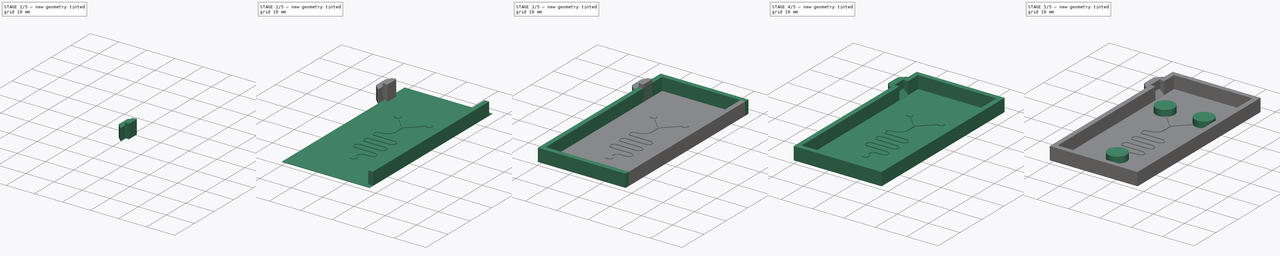
[diagram: build sequence overview — one tinted view per stage of 5, left to right]
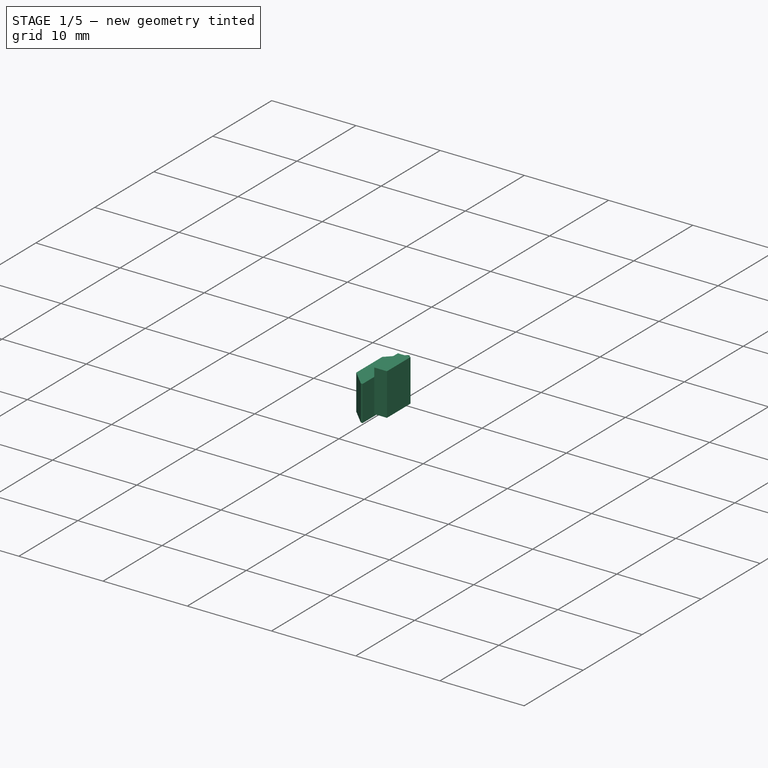
[diagram: stage 1 of 5 — iso view after this stage's code; geometry added in this stage tinted green]
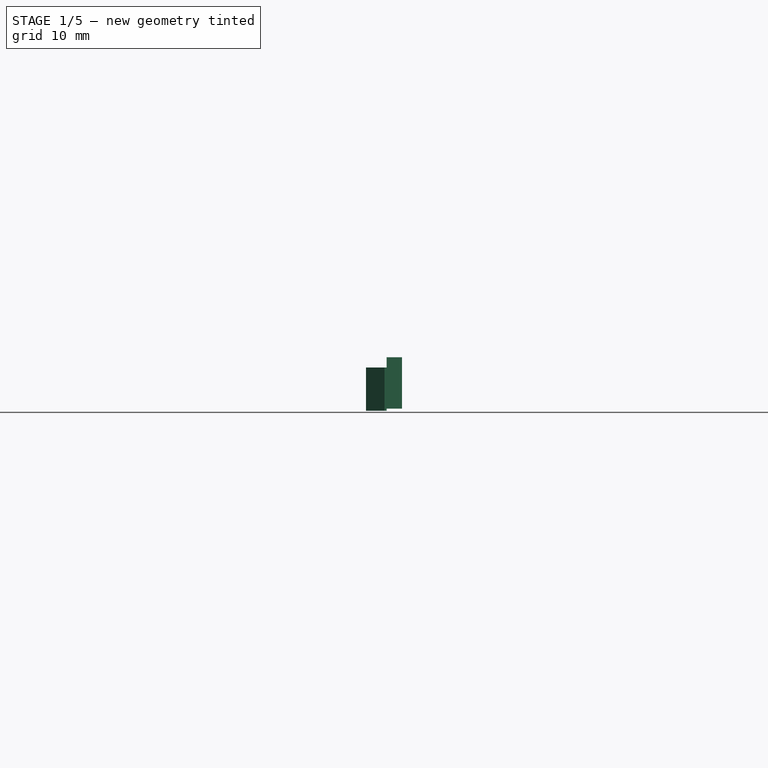
[diagram: stage 1 of 5 — front view after this stage's code; geometry added in this stage tinted green]
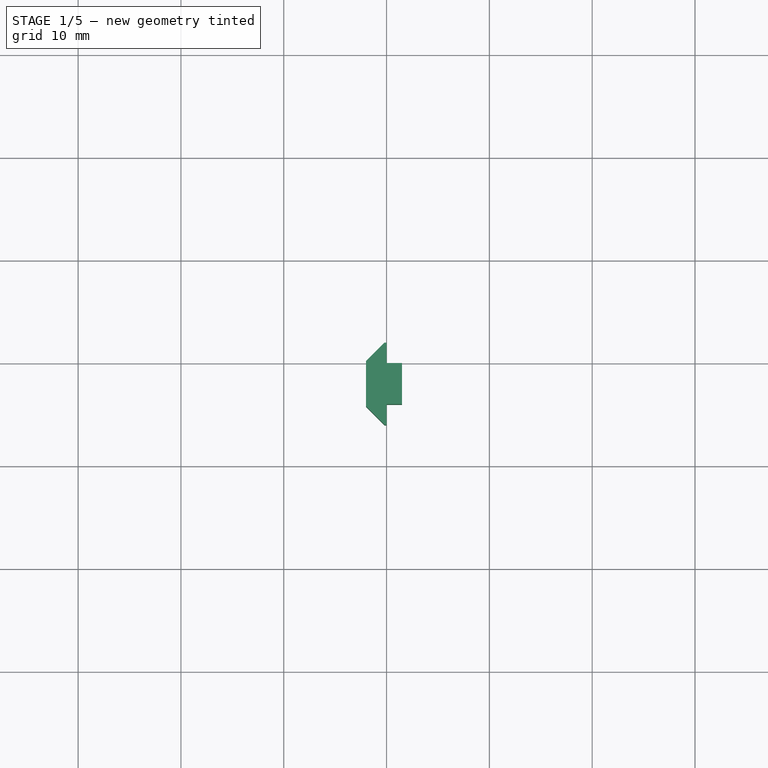
[diagram: stage 1 of 5 — top view after this stage's code; geometry added in this stage tinted green]
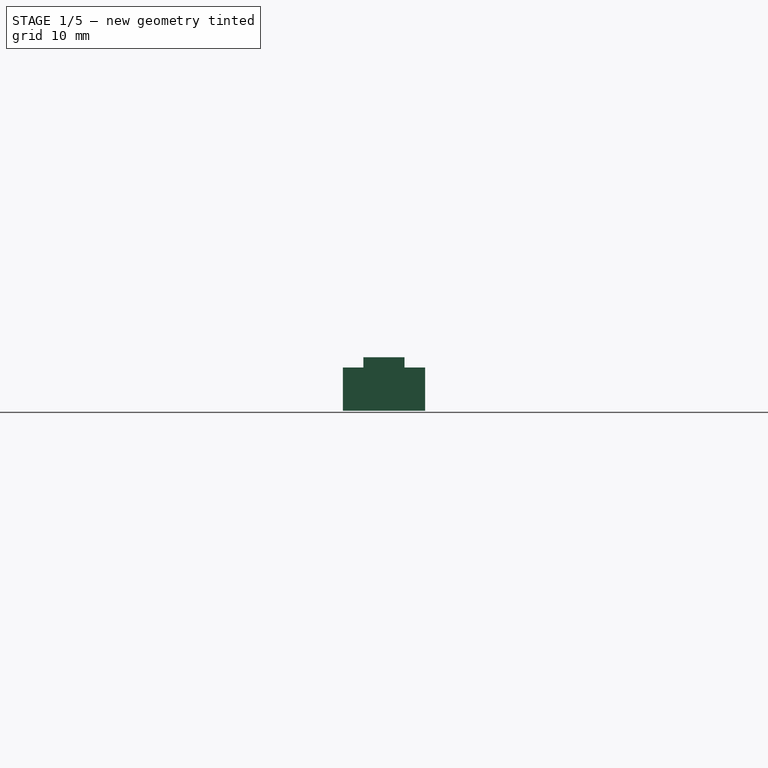
[diagram: stage 1 of 5 — right view after this stage's code; geometry added in this stage tinted green]
FCSTD DOCUMENT  (FreeCAD 0.16R6706 (Git))
Label: MG_17_004_partB_Microfluidic-Part_v1
License: All rights reserved
LicenseURL: http://en.wikipedia.org/wiki/All_rights_reserved
objects: Sketcher::SketchObject×6, PartDesign::Pad×6, Part::MultiFuse×5, Part::Box×3, Part::Chamfer×2, Part::Cut×1
note: 29 computed .brp shape members not serialized (recipe doc carries the construction recipe); baked Part::Feature solids carry a one-line shape summary decoded from their .brp

FEATURE [Part::Box] Box001  label="Cube001"
  Height = 5
  Length = 1.5
  Placement = pos=(0,46,0.2) rot=(0,0,1;0rad)
  Width = 4
FEATURE [Part::Box] Box002  label="Cube002"
  Height = 4.2
  Length = 2
  Placement = pos=(-2,44,0) rot=(0,0,1;0rad)
  Width = 8
FEATURE [Part::Chamfer] Chamfer001
  Base = -> Box002
  Edges = 2 edges r=1.8: [Edge1,Edge3]
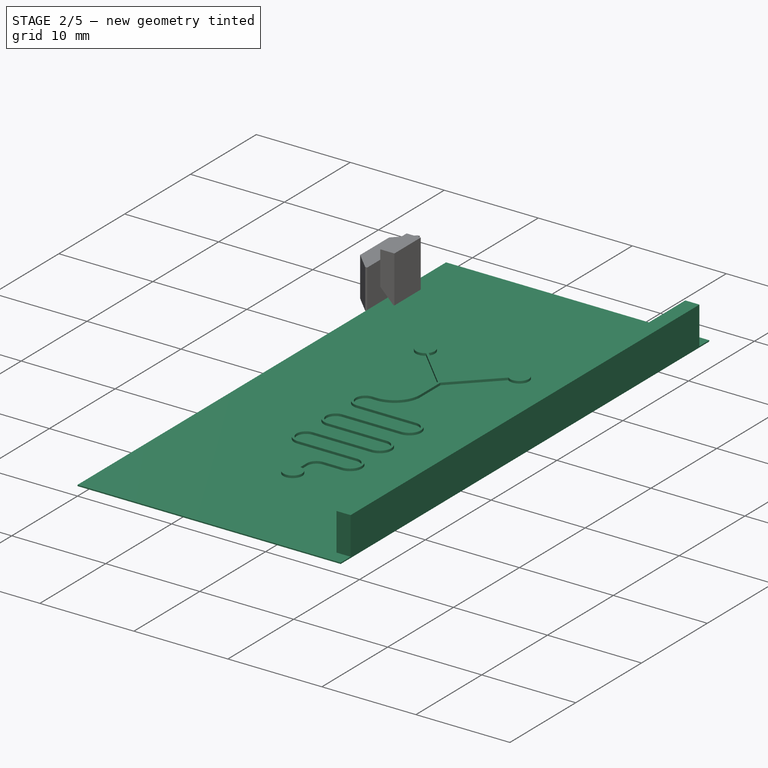
[diagram: stage 2 of 5 — iso view after this stage's code; geometry added in this stage tinted green]
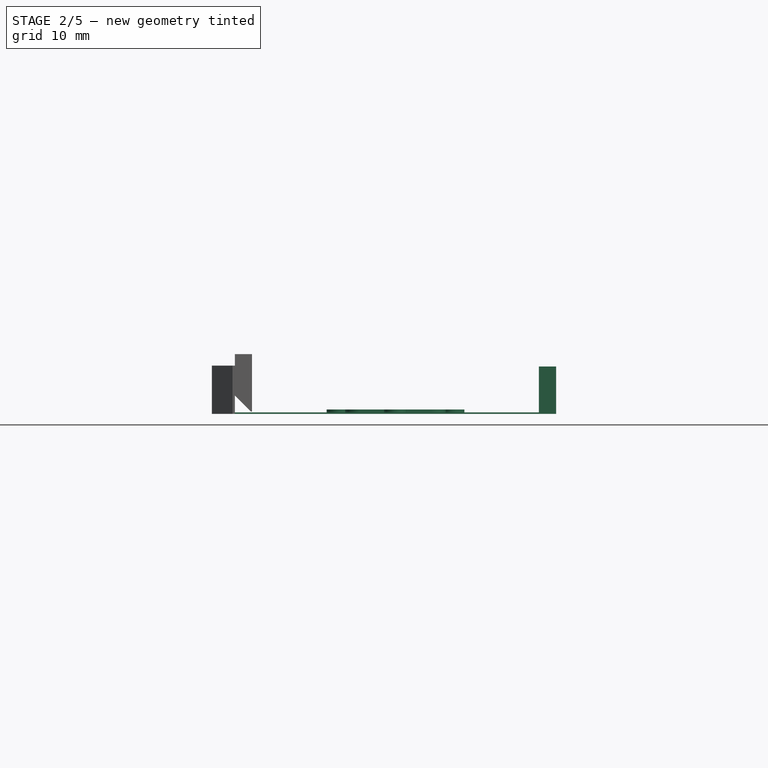
[diagram: stage 2 of 5 — front view after this stage's code; geometry added in this stage tinted green]
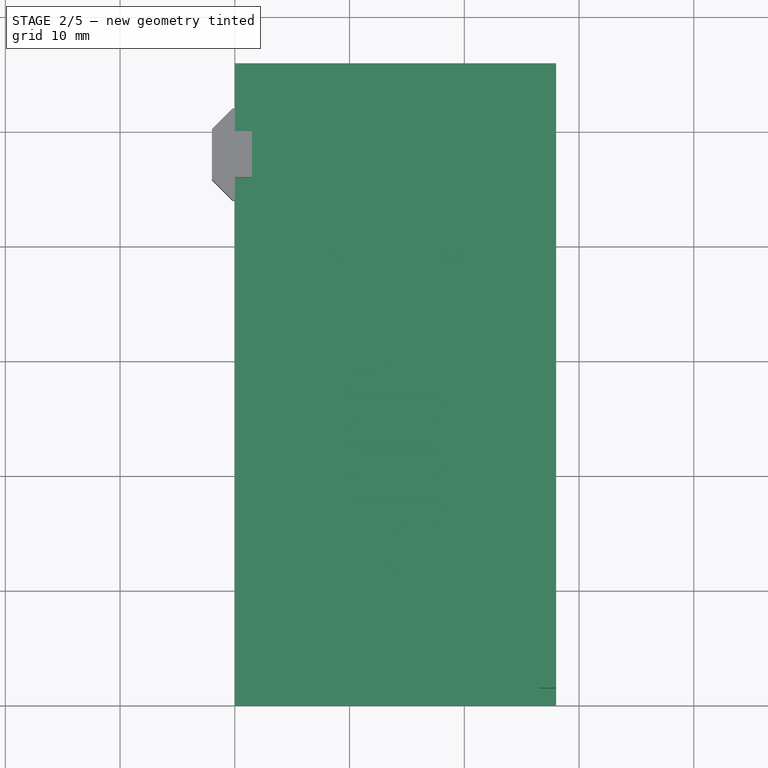
[diagram: stage 2 of 5 — top view after this stage's code; geometry added in this stage tinted green]
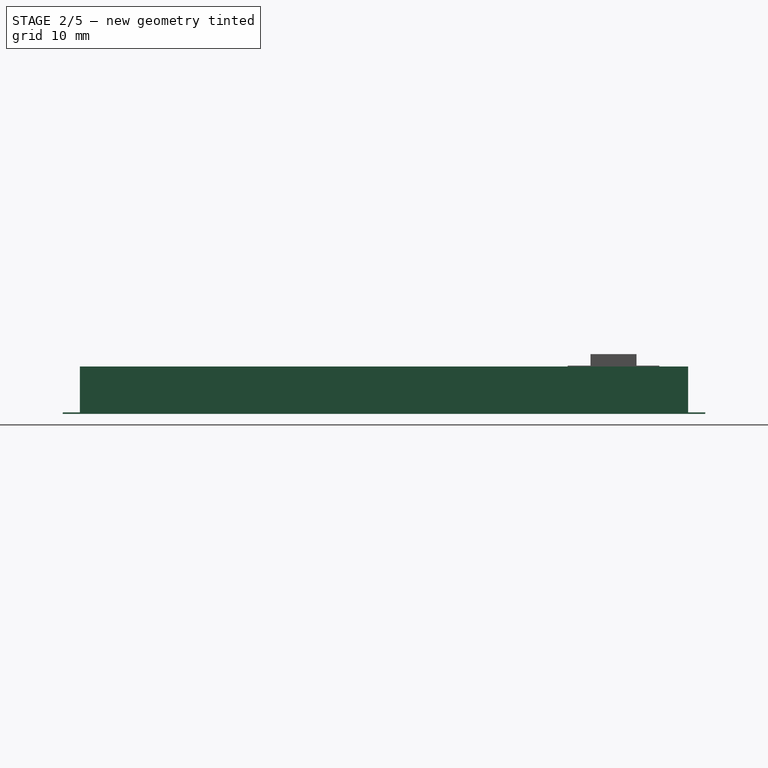
[diagram: stage 2 of 5 — right view after this stage's code; geometry added in this stage tinted green]
FEATURE [Part::Box] Box  label="Cube"
  Height = 0.125
  Length = 28
  Width = 56
FEATURE [Sketcher::SketchObject] Sketch
  Placement = pos=(0,0,0.125) rot=(0,0,1;0rad)
  Support = -> Box [Face6]
  sketch-geometry (44):
    g0: LineSegment StartX=9.78995 StartY=39.3868 StartZ=0 EndX=14 EndY=35.1768 EndZ=0
    g1: LineSegment StartX=9.61317 StartY=39.2101 StartZ=0 EndX=13.875 EndY=34.9482 EndZ=0
    g2: LineSegment StartX=18.3868 StartY=39.2101 StartZ=0 EndX=14.125 EndY=34.9482 EndZ=0
    g3: LineSegment StartX=18.2101 StartY=39.3868 StartZ=0 EndX=14 EndY=35.1768 EndZ=0
    g4: LineSegment StartX=13.875 StartY=34.9482 StartZ=0 EndX=13.875 EndY=31.9482 EndZ=0
    g5: LineSegment StartX=14.125 StartY=34.9482 StartZ=0 EndX=14.125 EndY=31.9482 EndZ=0
    g6: LineSegment StartX=11.375 StartY=29.1982 StartZ=0 EndX=10.875 EndY=29.1982 EndZ=0
    g7: LineSegment StartX=11.375 StartY=29.4482 StartZ=0 EndX=10.875 EndY=29.4482 EndZ=0
    g8: ArcOfCircle CenterX=11.375 CenterY=31.9482 CenterZ=0 NormalX=0 NormalY=0 NormalZ=1 Radius=2.75 StartAngle=4.71239 EndAngle=6.28319
    g9: ArcOfCircle CenterX=11.375 CenterY=31.9482 CenterZ=0 NormalX=0 NormalY=0 NormalZ=1 Radius=2.5 StartAngle=4.71239 EndAngle=6.28319
    g10: LineSegment [constr] StartX=11.6132 StartY=37.2101 StartZ=0 EndX=11.7899 EndY=37.3868 EndZ=0
    g11: LineSegment [constr] StartX=9.61317 StartY=39.2101 StartZ=0 EndX=9.78995 EndY=39.3868 EndZ=0
    g12: LineSegment StartX=9.61317 StartY=39.2101 StartZ=0 EndX=9.70156 EndY=39.2984 EndZ=0
    g13: LineSegment StartX=10.875 StartY=26.9482 StartZ=0 EndX=17.125 EndY=26.9482 EndZ=0
    g14: LineSegment StartX=10.875 StartY=27.1982 StartZ=0 EndX=17.125 EndY=27.1982 EndZ=0
    g15: ArcOfCircle CenterX=10.875 CenterY=28.1982 CenterZ=0 NormalX=0 NormalY=0 NormalZ=1 Radius=1.25 StartAngle=1.5708 EndAngle=4.71239
    g16: ArcOfCircle CenterX=10.875 CenterY=28.1982 CenterZ=0 NormalX=0 NormalY=0 NormalZ=1 Radius=1 StartAngle=1.5708 EndAngle=4.71239
    g17: LineSegment StartX=17.125 StartY=24.6982 StartZ=0 EndX=10.875 EndY=24.6982 EndZ=0
    g18: LineSegment StartX=17.125 StartY=24.9482 StartZ=0 EndX=10.875 EndY=24.9482 EndZ=0
    g19: ArcOfCircle CenterX=17.125 CenterY=25.9482 CenterZ=0 NormalX=0 NormalY=0 NormalZ=1 Radius=1.25 StartAngle=4.71239 EndAngle=7.85398
    g20: ArcOfCircle CenterX=17.125 CenterY=25.9482 CenterZ=0 NormalX=0 NormalY=0 NormalZ=1 Radius=1 StartAngle=4.71239 EndAngle=7.85398
    g21: LineSegment StartX=10.875 StartY=22.4482 StartZ=0 EndX=17.125 EndY=22.4482 EndZ=0
    g22: LineSegment StartX=10.875 StartY=22.6982 StartZ=0 EndX=17.125 EndY=22.6982 EndZ=0
    g23: ArcOfCircle CenterX=10.875 CenterY=23.6982 CenterZ=0 NormalX=0 NormalY=0 NormalZ=1 Radius=1.25 StartAngle=1.5708 EndAngle=4.71239
    g24: ArcOfCircle CenterX=10.875 CenterY=23.6982 CenterZ=0 NormalX=0 NormalY=0 NormalZ=1 Radius=1 StartAngle=1.5708 EndAngle=4.71239
    g25: LineSegment StartX=17.125 StartY=20.1982 StartZ=0 EndX=10.875 EndY=20.1982 EndZ=0
    g26: LineSegment StartX=17.125 StartY=20.4482 StartZ=0 EndX=10.875 EndY=20.4482 EndZ=0
    g27: ArcOfCircle CenterX=17.125 CenterY=21.4482 CenterZ=0 NormalX=0 NormalY=0 NormalZ=1 Radius=1.25 StartAngle=4.71239 EndAngle=7.85398
    g28: ArcOfCircle CenterX=17.125 CenterY=21.4482 CenterZ=0 NormalX=0 NormalY=0 NormalZ=1 Radius=1 StartAngle=4.71239 EndAngle=7.85398
    g29: LineSegment StartX=10.875 StartY=17.9482 StartZ=0 EndX=17.125 EndY=17.9482 EndZ=0
    g30: LineSegment StartX=10.875 StartY=18.1982 StartZ=0 EndX=17.125 EndY=18.1982 EndZ=0
    g31: ArcOfCircle CenterX=10.875 CenterY=19.1982 CenterZ=0 NormalX=0 NormalY=0 NormalZ=1 Radius=1.25 StartAngle=1.5708 EndAngle=4.71239
    g32: ArcOfCircle CenterX=10.875 CenterY=19.1982 CenterZ=0 NormalX=0 NormalY=0 NormalZ=1 Radius=1 StartAngle=1.5708 EndAngle=4.71239
    g33: LineSegment StartX=17.125 StartY=15.6982 StartZ=0 EndX=15.125 EndY=15.6982 EndZ=0
    g34: LineSegment StartX=17.125 StartY=15.9482 StartZ=0 EndX=15.125 EndY=15.9482 EndZ=0
    g35: ArcOfCircle CenterX=17.125 CenterY=16.9482 CenterZ=0 NormalX=0 NormalY=0 NormalZ=1 Radius=1.25 StartAngle=4.71239 EndAngle=7.85398
    g36: ArcOfCircle CenterX=17.125 CenterY=16.9482 CenterZ=0 NormalX=0 NormalY=0 NormalZ=1 Radius=1 StartAngle=4.71239 EndAngle=7.85398
    g37: LineSegment StartX=13.875 StartY=14.6982 StartZ=0 EndX=13.875 EndY=13.6982 EndZ=0
    g38: LineSegment StartX=14.125 StartY=14.6982 StartZ=0 EndX=14.125 EndY=13.6982 EndZ=0
    g39: ArcOfCircle CenterX=15.125 CenterY=14.6982 CenterZ=0 NormalX=0 NormalY=0 NormalZ=1 Radius=1.25 StartAngle=1.5708 EndAngle=3.14159
    g40: ArcOfCircle CenterX=15.125 CenterY=14.6982 CenterZ=0 NormalX=0 NormalY=0 NormalZ=1 Radius=1 StartAngle=1.5708 EndAngle=3.14159
    g41: ArcOfCircle CenterX=9 CenterY=40 CenterZ=0 NormalX=0 NormalY=0 NormalZ=1 Radius=1 StartAngle=5.62311 EndAngle=11.6556
    g42: ArcOfCircle CenterX=19 CenterY=40 CenterZ=0 NormalX=0 NormalY=0 NormalZ=1 Radius=1 StartAngle=4.05232 EndAngle=10.0848
    g43: ArcOfCircle CenterX=14 CenterY=12.7061 CenterZ=0 NormalX=0 NormalY=0 NormalZ=1 Radius=1 StartAngle=1.69612 EndAngle=7.72865
  constraints (120):
    c: Tangent(g5,g8) = 1.5708
    c: Tangent(g6,g8) = 1.5708
    c: Tangent(g4,g9) = 1.5708
    c: Tangent(g7,g9) = 1.5708
    c: Parallel(g0,g1)
    c: Parallel(g2,g3)
    c: Parallel(g5,g4)
    c: Parallel(g6,g7)
    c: Vertical(g5)
    c: Perpendicular(g2,g0)
    c: Equal(g0,g3)
    c: DistanceY(g0,g3) = 0
    c: DistanceY(g2,g1) = 0
    c: PointOnObject(g3,g0)
    c: Coincident(g0,g3)
    c: Coincident(g5,g2)
    c: Coincident(g1,g4)
    c: DistanceX(g1,g2) = 0.25
    c: DistanceX(g1,g0) = 0.125
    c: PointOnObject(g10,g1)
    c: PointOnObject(g10,g0)
    c: Perpendicular(g1,g10)
    c: Distance(g10,g10) = 0.25
    c: Coincident(g11,g1)
    c: Coincident(g11,g0)
    c: Perpendicular(g1,g11)
    c: Coincident(g12,g1)
    c: PointOnObject(g12,g11)
    c: Distance(g1,g12) = 0.125
    c: DistanceY(g4,g5) = 0
    c: DistanceX(g0) = 14
    c: DistanceX(g7,g6) = 0
    c: DistanceY(g6,g7) = 0.25
    c: DistanceX(g8,g4) = 2.5
    c: Tangent(g7,g15) = -1.5708
    c: Tangent(g13,g15) = -1.5708
    c: Tangent(g6,g16) = -1.5708
    c: Tangent(g14,g16) = -1.5708
    c: DistanceX(g7,g7) = 0.5
    c: DistanceY(g4,g4) = 3
    c: Equal(g7,g6)
    c: DistanceX(g13,g7) = 0
    c: DistanceX(g6,g14) = 0
    c: DistanceY(g13,g14) = 0.25
    c: DistanceY(g14,g6) = 2
    c: Equal(g13,g14)
    c: Tangent(g14,g19) = 1.5708
    c: Tangent(g17,g19) = 1.5708
    c: Tangent(g13,g20) = 1.5708
    c: Tangent(g18,g20) = 1.5708
    c: DistanceX(g14,g14) = 6.25
    c: DistanceX(g14,g17) = 0
    c: DistanceY(g18,g13) = 2
    c: DistanceY(g17,g18) = 0.25
    c: Equal(g18,g17)
    c: Tangent(g18,g23) = -1.5708
    c: Tangent(g21,g23) = -1.5708
    c: Tangent(g17,g24) = -1.5708
    c: Tangent(g22,g24) = -1.5708
    c: DistanceX(g13,g18) = 0
    c: DistanceX(g21,g18) = 0
    c: DistanceY(g21,g22) = 0.25
    c: DistanceY(g22,g17) = 2
    c: Tangent(g22,g27) = 1.5708
    c: Tangent(g25,g27) = 1.5708
    c: Tangent(g21,g28) = 1.5708
    c: Tangent(g26,g28) = 1.5708
    c: DistanceX(g22,g17) = 0
    c: Equal(g22,g21)
    c: DistanceY(g25,g26) = 0.25
    c: DistanceX(g22,g25) = 0
    c: DistanceY(g26,g21) = 2
    c: Tangent(g26,g31) = -1.5708
    c: Tangent(g29,g31) = -1.5708
    c: Tangent(g25,g32) = -1.5708
    c: Tangent(g30,g32) = -1.5708
    c: Equal(g26,g25)
    c: DistanceX(g29,g26) = 0
    c: DistanceY(g29,g30) = 0.25
    c: DistanceY(g30,g25) = 2
    c: DistanceX(g25,g30) = 0
    c: Tangent(g30,g35) = 1.5708
    c: Tangent(g33,g35) = 1.5708
    c: Tangent(g29,g36) = 1.5708
    c: Tangent(g34,g36) = 1.5708
    c: Equal(g30,g29)
    c: DistanceX(g30,g25) = 0
    c: DistanceY(g33,g34) = 0.25
    c: DistanceX(g30,g33) = 0
    c: DistanceY(g34,g29) = 2
    c: Tangent(g34,g39) = -1.5708
    c: Tangent(g37,g39) = -1.5708
    c: Tangent(g33,g40) = -1.5708
    c: Tangent(g38,g40) = -1.5708
    c: Equal(g33,g34)
    c: DistanceX(g37,g38) = 0.25
    c: Equal(g38,g37)
    c: DistanceX(g37,g1) = 0
    c: Vertical(g37)
    c: Parallel(g38,g37)
    c: DistanceY(g38,g33) = 1
    c: DistanceY(g38,g38) = 1
    c: DistanceX(g26,g21) = 0
    c: DistanceX(g29,g34) = 0
    c: DistanceX(g13,g18) = 0
    c: DistanceX(g17,g22) = 0
    c: DistanceX(g21,g26) = 0
    c: DistanceX(g1,g10) = 2
    c: Coincident(g41,g1)
    c: Coincident(g41,g0)
    c: DistanceY(g41) = 40
    c: Radius(g41) = 1
    c: Coincident(g42,g2)
    c: Coincident(g42,g3)
    c: DistanceY(g41,g42) = 0
    c: Radius(g42) = 1
    c: DistanceX(g41,g42) = 10
    c: Coincident(g43,g38)
    c: Coincident(g43,g37)
    c: Radius(g43) = 1
FEATURE [PartDesign::Pad] Pad
  Length = 0.25
  Length2 = 100
  Sketch = -> Sketch
  Type = 0
FEATURE [PartDesign::Pad] Pad006
  Length = 4
  Length2 = 100
  Sketch = -> Sketch006
  Type = 0
FEATURE [Part::Chamfer] Chamfer
  Base = -> Box001
  Edges = 1 edges r=1.4: [Edge4]
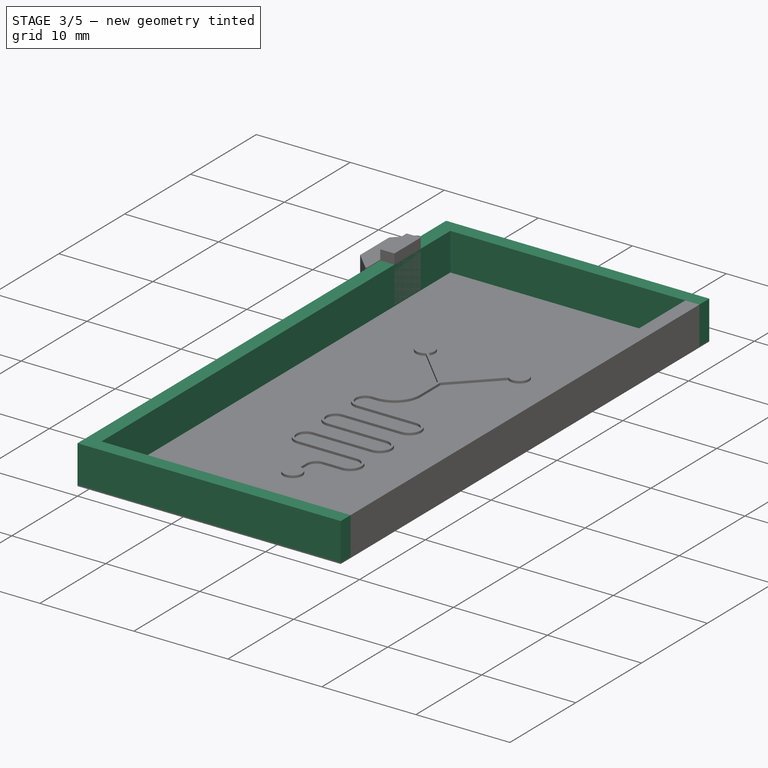
[diagram: stage 3 of 5 — iso view after this stage's code; geometry added in this stage tinted green]
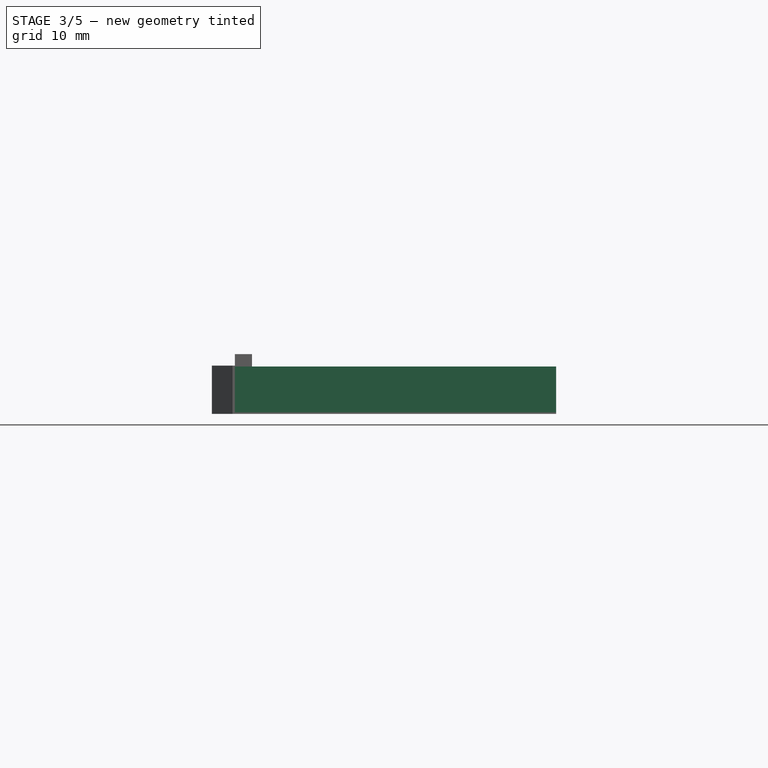
[diagram: stage 3 of 5 — front view after this stage's code; geometry added in this stage tinted green]
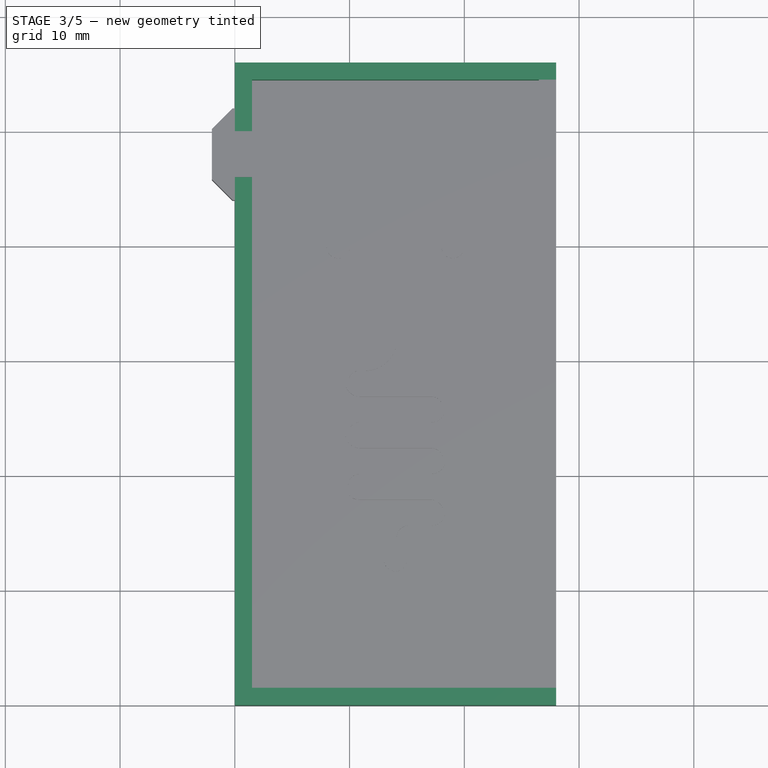
[diagram: stage 3 of 5 — top view after this stage's code; geometry added in this stage tinted green]
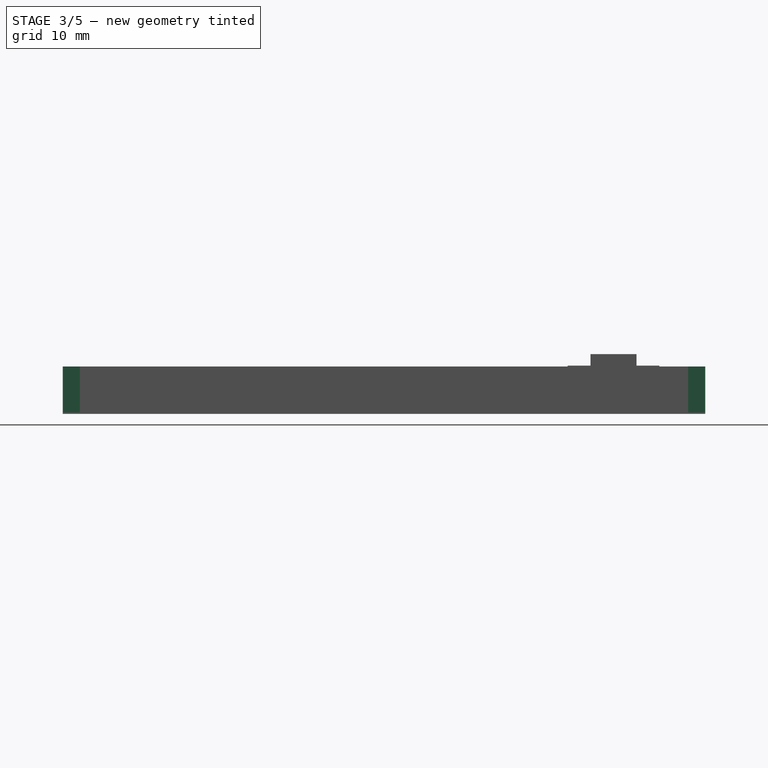
[diagram: stage 3 of 5 — right view after this stage's code; geometry added in this stage tinted green]
FEATURE [Sketcher::SketchObject] Sketch003
  Placement = pos=(0,0,0.125) rot=(0,0,1;0rad)
  Support = -> Pad [Face3]
  sketch-geometry (4):
    g0: LineSegment StartX=0 StartY=56 StartZ=0 EndX=28 EndY=56 EndZ=0
    g1: LineSegment StartX=28 StartY=56 StartZ=0 EndX=28 EndY=54.5 EndZ=0
    g2: LineSegment StartX=28 StartY=54.5 StartZ=0 EndX=0 EndY=54.5 EndZ=0
    g3: LineSegment StartX=0 StartY=54.5 StartZ=0 EndX=0 EndY=56 EndZ=0
  constraints (12):
    c: Coincident(g0,g1)
    c: Coincident(g1,g2)
    c: Coincident(g2,g3)
    c: Coincident(g3,g0)
    c: Horizontal(g0)
    c: Horizontal(g2)
    c: Vertical(g1)
    c: Vertical(g3)
    c: PointOnObject(g0,g-2)
    c: DistanceY(g0) = 56
    c: Distance(g3) = 1.5
    c: Distance(g0) = 28
FEATURE [Sketcher::SketchObject] Sketch004
  Placement = pos=(0,0,0.125) rot=(0,0,1;0rad)
  Support = -> Pad [Face3]
  sketch-geometry (4):
    g0: LineSegment StartX=0 StartY=54.5 StartZ=0 EndX=1.5 EndY=54.5 EndZ=0
    g1: LineSegment StartX=1.5 StartY=54.5 StartZ=0 EndX=1.5 EndY=0 EndZ=0
    g2: LineSegment StartX=1.5 StartY=0 StartZ=0 EndX=0 EndY=0 EndZ=0
    g3: LineSegment StartX=0 StartY=0 StartZ=0 EndX=0 EndY=54.5 EndZ=0
  constraints (12):
    c: Coincident(g0,g1)
    c: Coincident(g1,g2)
    c: Coincident(g2,g3)
    c: Coincident(g3,g0)
    c: Horizontal(g0)
    c: Horizontal(g2)
    c: Vertical(g1)
    c: Vertical(g3)
    c: PointOnObject(g0,g-2)
    c: PointOnObject(g1,g-1)
    c: Distance(g2) = 1.5
    c: DistanceY(g0) = 54.5
FEATURE [Sketcher::SketchObject] Sketch005
  Placement = pos=(0,0,0.125) rot=(0,0,1;0rad)
  Support = -> Pad [Face3]
  sketch-geometry (4):
    g0: LineSegment StartX=0 StartY=0 StartZ=0 EndX=28 EndY=0 EndZ=0
    g1: LineSegment StartX=28 StartY=0 StartZ=0 EndX=28 EndY=1.5 EndZ=0
    g2: LineSegment StartX=28 StartY=1.5 StartZ=0 EndX=0 EndY=1.5 EndZ=0
    g3: LineSegment StartX=0 StartY=1.5 StartZ=0 EndX=0 EndY=0 EndZ=0
  constraints (11):
    c: Coincident(g0,g1)
    c: Coincident(g1,g2)
    c: Coincident(g2,g3)
    c: Coincident(g3,g0)
    c: Horizontal(g0)
    c: Horizontal(g2)
    c: Vertical(g1)
    c: Vertical(g3)
    c: Coincident(g0,g-1)
    c: Distance(g3) = 1.5
    c: DistanceX(g0) = 28
FEATURE [Sketcher::SketchObject] Sketch006
  Placement = pos=(0,0,0.125) rot=(0,0,1;0rad)
  Support = -> Pad [Face3]
  sketch-geometry (4):
    g0: LineSegment StartX=28 StartY=1.5 StartZ=0 EndX=26.5 EndY=1.5 EndZ=0
    g1: LineSegment StartX=26.5 StartY=1.5 StartZ=0 EndX=26.5 EndY=54.5 EndZ=0
    g2: LineSegment StartX=26.5 StartY=54.5 StartZ=0 EndX=28 EndY=54.5 EndZ=0
    g3: LineSegment StartX=28 StartY=54.5 StartZ=0 EndX=28 EndY=1.5 EndZ=0
  constraints (12):
    c: Coincident(g0,g1)
    c: Coincident(g1,g2)
    c: Coincident(g2,g3)
    c: Coincident(g3,g0)
    c: Horizontal(g0)
    c: Horizontal(g2)
    c: Vertical(g1)
    c: Vertical(g3)
    c: DistanceY(g0) = 1.5
    c: Distance(g0) = 1.5
    c: DistanceX(g0) = 28
    c: DistanceY(g2) = 54.5
FEATURE [PartDesign::Pad] Pad003
  Length = 4
  Length2 = 100
  Sketch = -> Sketch003
  Type = 0
FEATURE [PartDesign::Pad] Pad004
  Length = 4
  Length2 = 100
  Sketch = -> Sketch004
  Type = 0
FEATURE [PartDesign::Pad] Pad005
  Length = 4
  Length2 = 100
  Sketch = -> Sketch005
  Type = 0
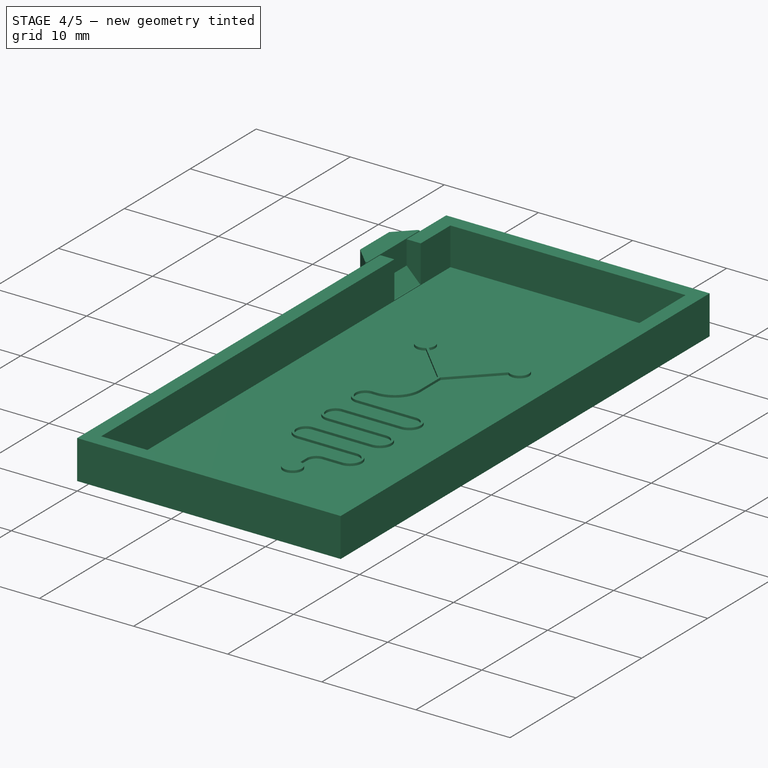
[diagram: stage 4 of 5 — iso view after this stage's code; geometry added in this stage tinted green]
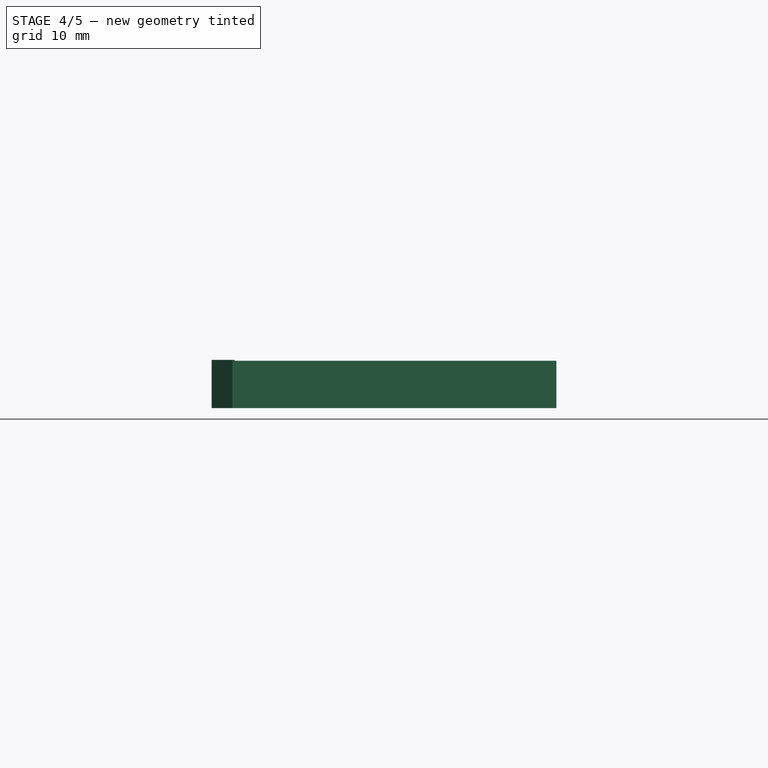
[diagram: stage 4 of 5 — front view after this stage's code; geometry added in this stage tinted green]
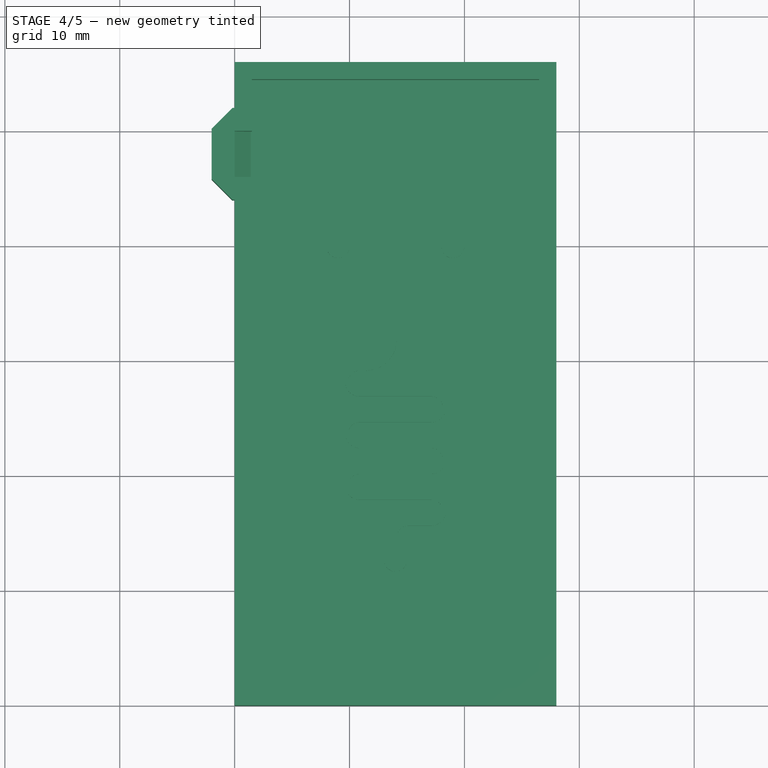
[diagram: stage 4 of 5 — top view after this stage's code; geometry added in this stage tinted green]
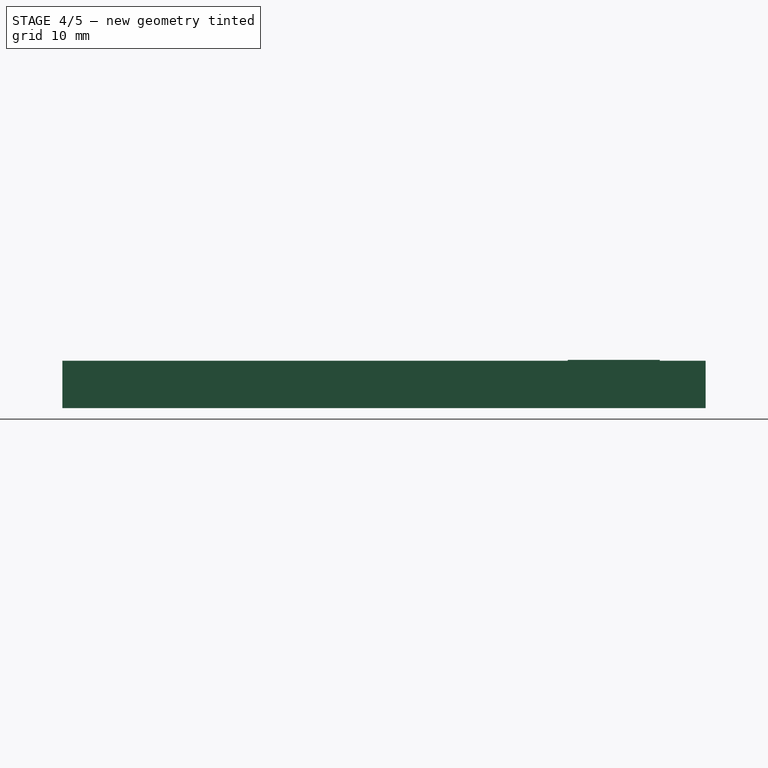
[diagram: stage 4 of 5 — right view after this stage's code; geometry added in this stage tinted green]
FEATURE [Part::MultiFuse] Fusion
  Shapes = -> [Box,Pad]
FEATURE [Part::MultiFuse] Fusion001
  Shapes = -> [Pad003,Pad004,Pad005,Pad006]
FEATURE [Part::MultiFuse] Fusion002
  Shapes = -> [Fusion,Fusion001]
FEATURE [Part::Cut] Cut
  Base = -> Fusion002
  Tool = -> Chamfer
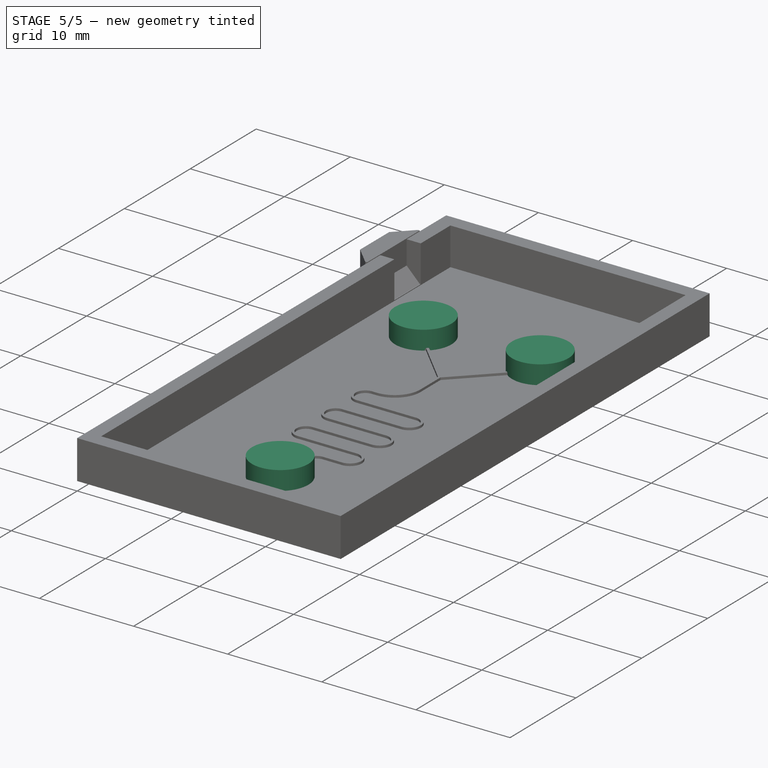
[diagram: stage 5 of 5 — iso view after this stage's code; geometry added in this stage tinted green]
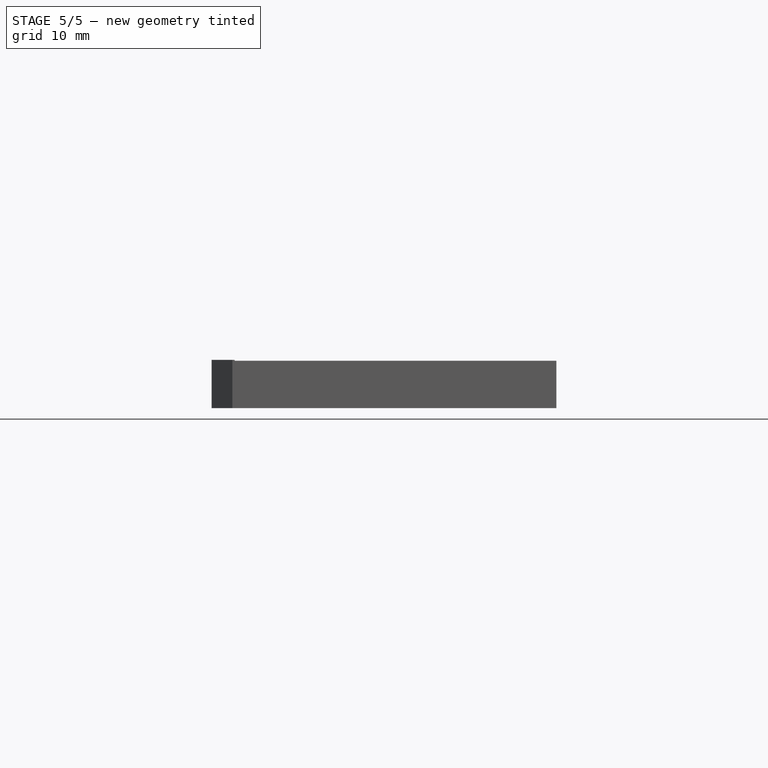
[diagram: stage 5 of 5 — front view after this stage's code; geometry added in this stage tinted green]
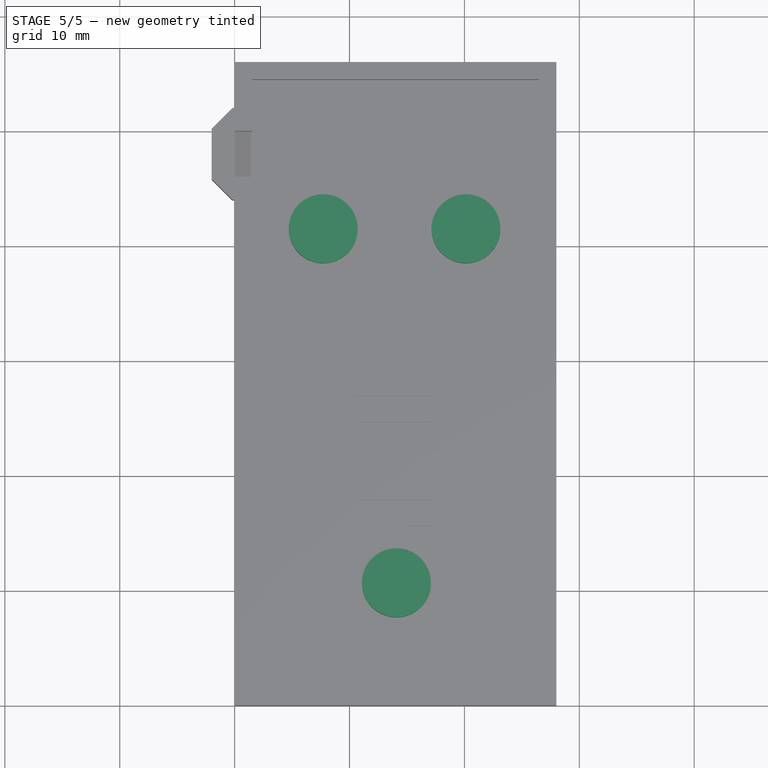
[diagram: stage 5 of 5 — top view after this stage's code; geometry added in this stage tinted green]
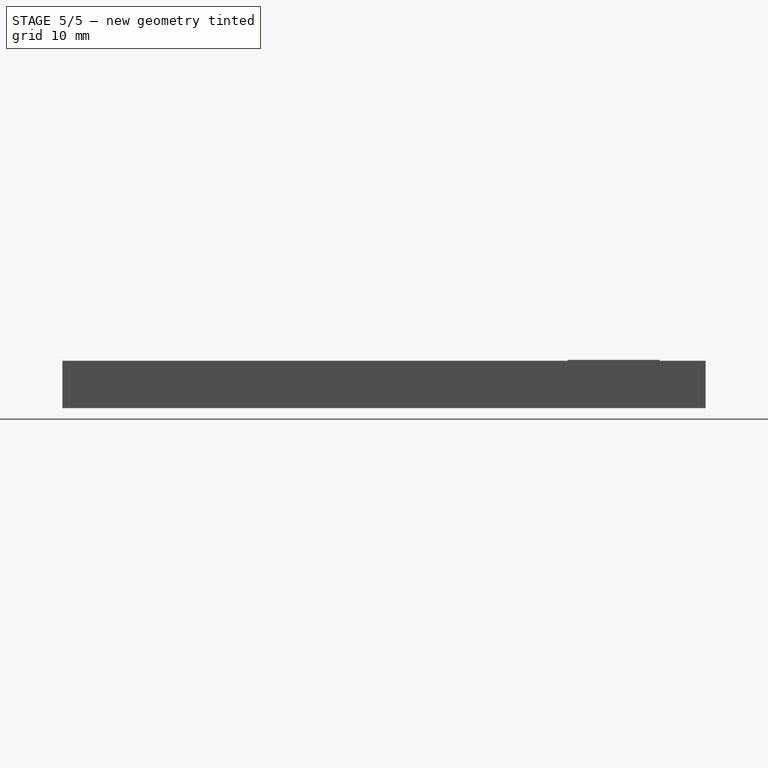
[diagram: stage 5 of 5 — right view after this stage's code; geometry added in this stage tinted green]
FEATURE [Part::MultiFuse] Fusion003
  Shapes = -> [Cut,Chamfer001]
FEATURE [Sketcher::SketchObject] Sketch007
  Placement = pos=(0,0,0.125) rot=(0,0,1;0rad)
  Support = -> Fusion003 [Face18]
  sketch-geometry (3):
    g0: Circle CenterX=7.70581 CenterY=41.5252 CenterZ=0 NormalX=0 NormalY=0 NormalZ=1 Radius=3
    g1: Circle CenterX=20.1319 CenterY=41.5252 CenterZ=0 NormalX=0 NormalY=0 NormalZ=1 Radius=3
    g2: Circle CenterX=14.0799 CenterY=10.7013 CenterZ=0 NormalX=0 NormalY=0 NormalZ=1 Radius=3
  constraints (9):
    c: DistanceY(g0,g1) = 0
    c: Radius(g0) = 3
    c: Equal(g0,g1)
    c: Equal(g0,g2)
    c: DistanceY(g0) = 41.5252
    c: DistanceY(g2,g0) = 30.8239
    c: DistanceX(g0,g2) = 6.37413
    c: DistanceX(g0,g1) = 12.4261
    c: DistanceX(g0) = 7.70581
FEATURE [PartDesign::Pad] Pad007
  Length = 2
  Length2 = 100
  Sketch = -> Sketch007
  Type = 0
FEATURE [Part::MultiFuse] Fusion004
  Shapes = -> [Pad007,Chamfer001,Cut,Fusion003]
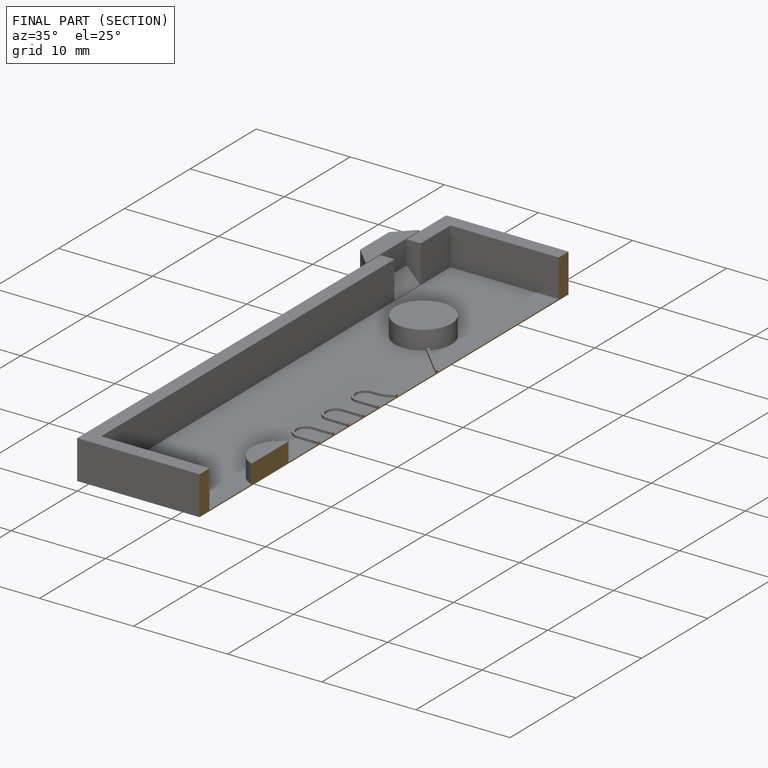
[diagram: finished part — half-section view (interior)]
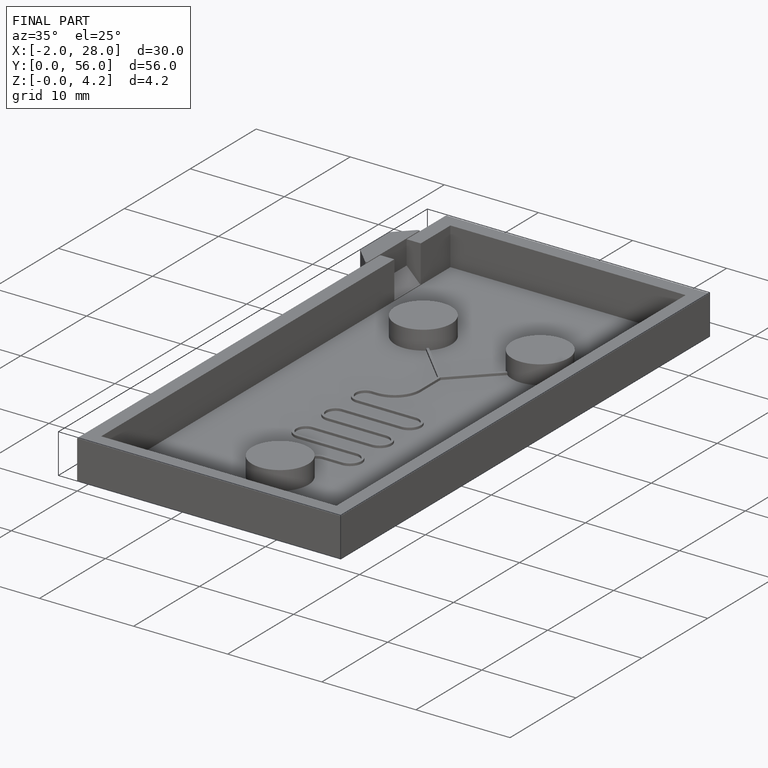
[diagram: finished part — iso view with bounding-box wireframe]
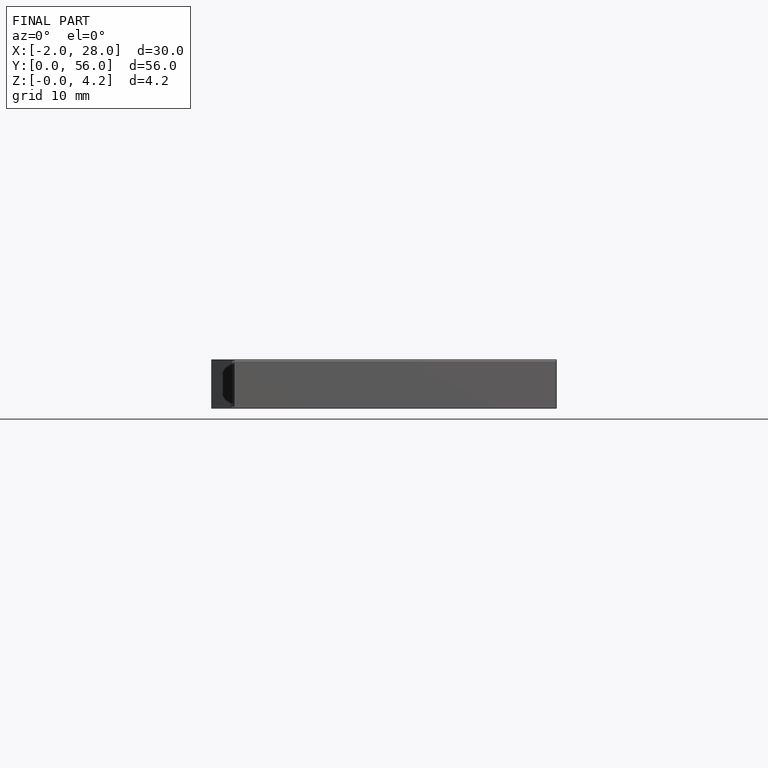
[diagram: finished part — front view with bounding-box wireframe]
